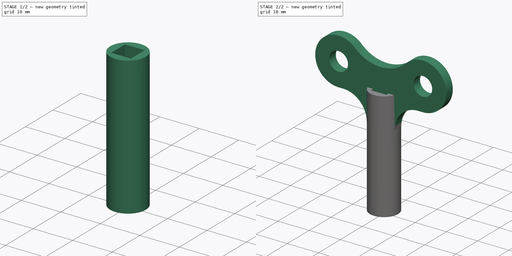
[diagram: build sequence overview — one tinted view per stage of 2, left to right]
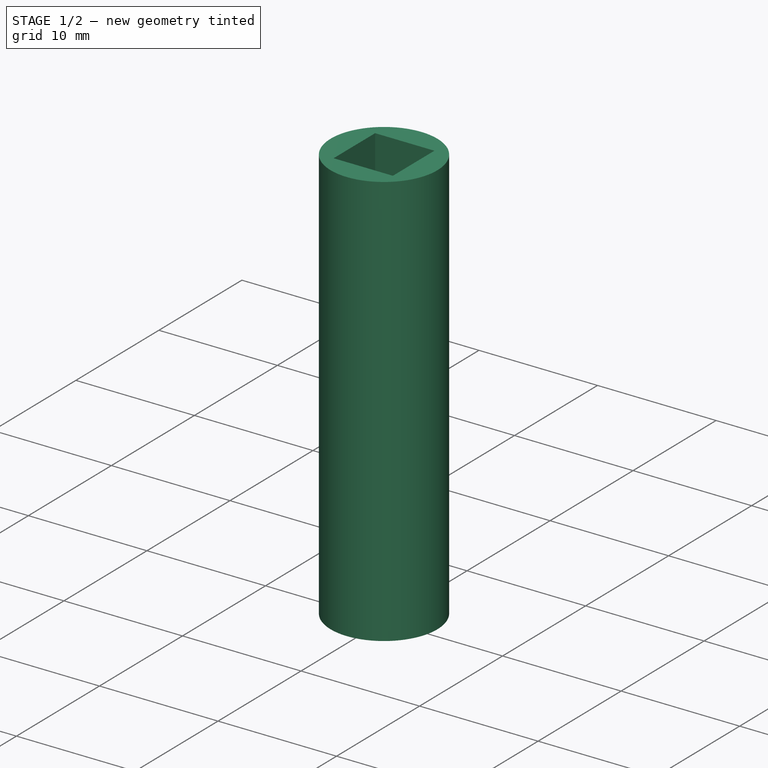
[diagram: stage 1 of 2 — iso view after this stage's code; geometry added in this stage tinted green]
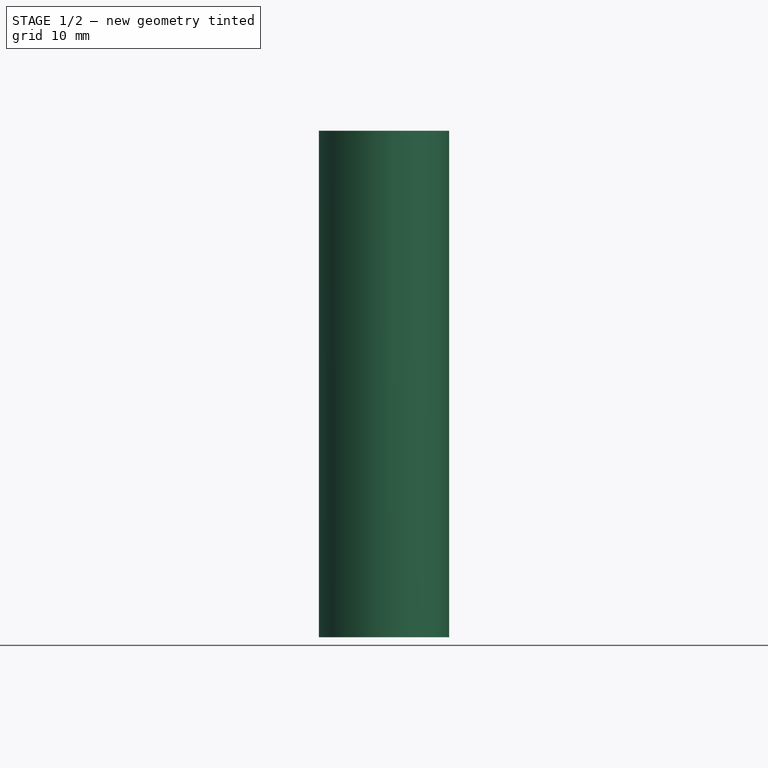
[diagram: stage 1 of 2 — front view after this stage's code; geometry added in this stage tinted green]
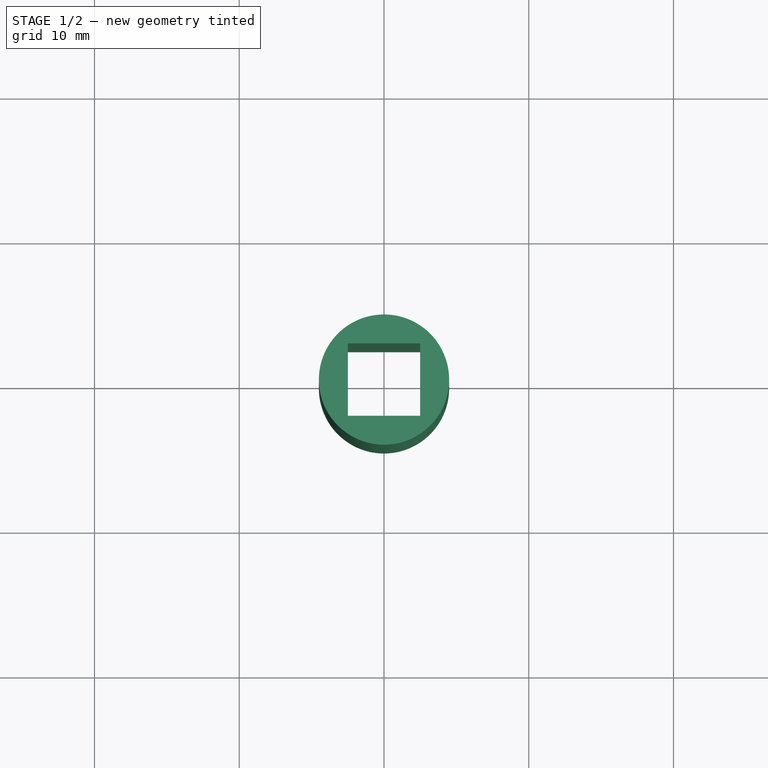
[diagram: stage 1 of 2 — top view after this stage's code; geometry added in this stage tinted green]
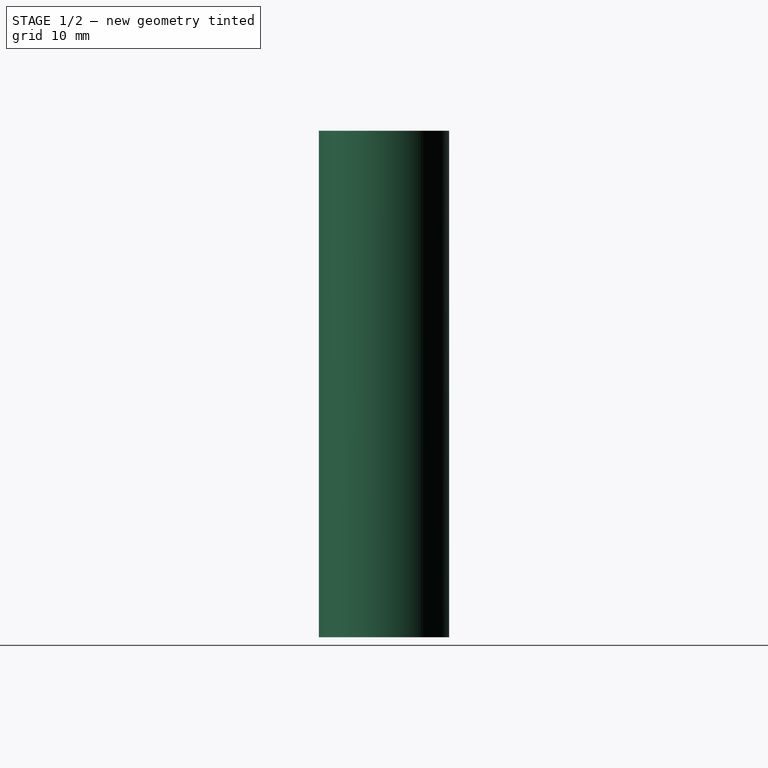
[diagram: stage 1 of 2 — right view after this stage's code; geometry added in this stage tinted green]
FCSTD DOCUMENT  (FreeCAD 1.0R39285 (Git))
Label: WindingKey
License: All rights reserved
LicenseURL: https://en.wikipedia.org/wiki/All_rights_reserved
objects: Sketcher::SketchObject×2, PartDesign::Pad×2, Spreadsheet::Sheet×1, PartDesign::Body×1
note: 11 computed .brp shape members not serialized (recipe doc carries the construction recipe); baked Part::Feature solids carry a one-line shape summary decoded from their .brp

FEATURE [Spreadsheet::Sheet] Spreadsheet
  cells = A1='Square Key; A2='Key Size; B2(SquareKeySize)==5 mm; A3='Outer Diameter; B3(SquareKeyOuterDiameter)==9 mm; A4='Length; B4(SquareKeyLength)==25 mm; A5=' Top Length; B5(SquareKeyTopLength)==10 mm; A6='Grip Hole Dia; B6(SquareKeyGripHoleDia)==6 mm; A7='Grip Hole Width; B7(SquareKeyGripHoleWidth)==27 mm; A8='Grip Hole Height; B8(SquareKeyGripHoleHeight)==15 mm; A9='Grip Center Height; B9(SquareKeyGripCenterHeight)==17 mm; A10='Grip Thickness; B10(SquareKeyGripThickness)==3 mm
FEATURE [Sketcher::SketchObject] Sketch
  ArcFitTolerance = 1e-06
  AttachmentSupport = -> [XY_Plane]
  FullyConstrained = true
  MakeInternals = false
  MapMode = 5
  expr: Constraints[13] = <<Spreadsheet>>.SquareKeySize
  expr: Constraints[1] = <<Spreadsheet>>.SquareKeyOuterDiameter
  sketch-geometry (6):
    g0: Circle CenterX=0 CenterY=0 CenterZ=0 NormalX=0 NormalY=0 NormalZ=1 AngleXU=0 Radius=4.5
    g1: LineSegment StartX=-2.5 StartY=2.5 StartZ=0 EndX=-2.5 EndY=-2.5 EndZ=0
    g2: LineSegment StartX=-2.5 StartY=-2.5 StartZ=0 EndX=2.5 EndY=-2.5 EndZ=0
    g3: LineSegment StartX=2.5 StartY=-2.5 StartZ=0 EndX=2.5 EndY=2.5 EndZ=0
    g4: LineSegment StartX=2.5 StartY=2.5 StartZ=0 EndX=-2.5 EndY=2.5 EndZ=0
    g5: GeomPoint [constr] X=0 Y=0 Z=0
  constraints (14):
    c: Coincident(g0,g-1)
    c: Diameter(g0) = 9
    c: Coincident(g1,g2)
    c: Coincident(g2,g3)
    c: Coincident(g3,g4)
    c: Coincident(g4,g1)
    c: Vertical(g1)
    c: Vertical(g3)
    c: Horizontal(g2)
    c: Horizontal(g4)
    c: Symmetric(g3,g1,g5)
    c: Coincident(g5,g0)
    c: Equal(g3,g4)
    c: DistanceY(g1,g1) = 5
FEATURE [PartDesign::Pad] Pad
  Direction = (0,0,1)
  Length = 10
  Length2 = 25
  Profile = -> Sketch
  ReferenceAxis = -> Sketch [N_Axis]
  Refine = true
  Suppressed = false
  Type = 4
  expr: Length = <<Spreadsheet>>.SquareKeyTopLength
  expr: Length2 = <<Spreadsheet>>.SquareKeyLength
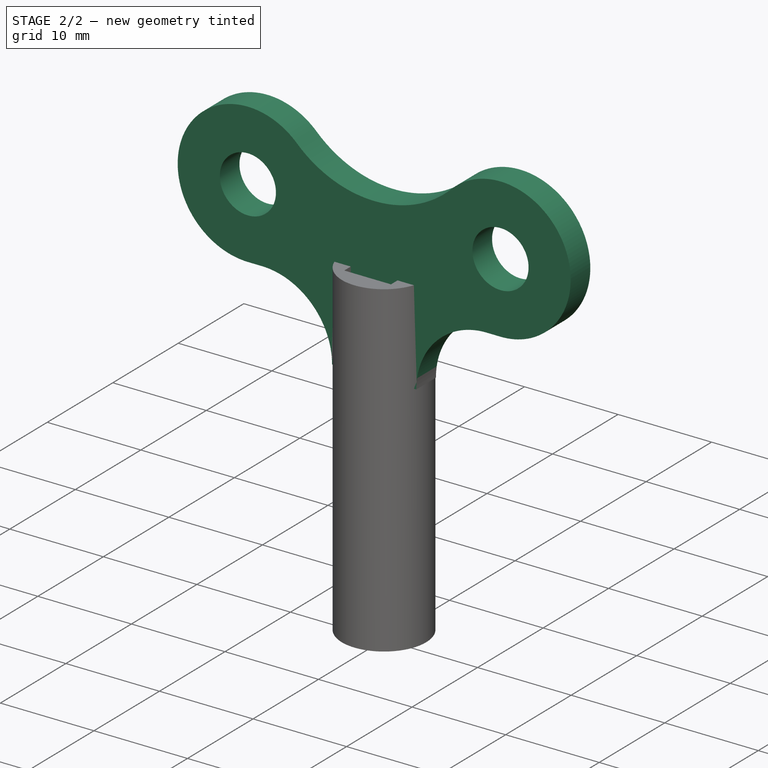
[diagram: stage 2 of 2 — iso view after this stage's code; geometry added in this stage tinted green]
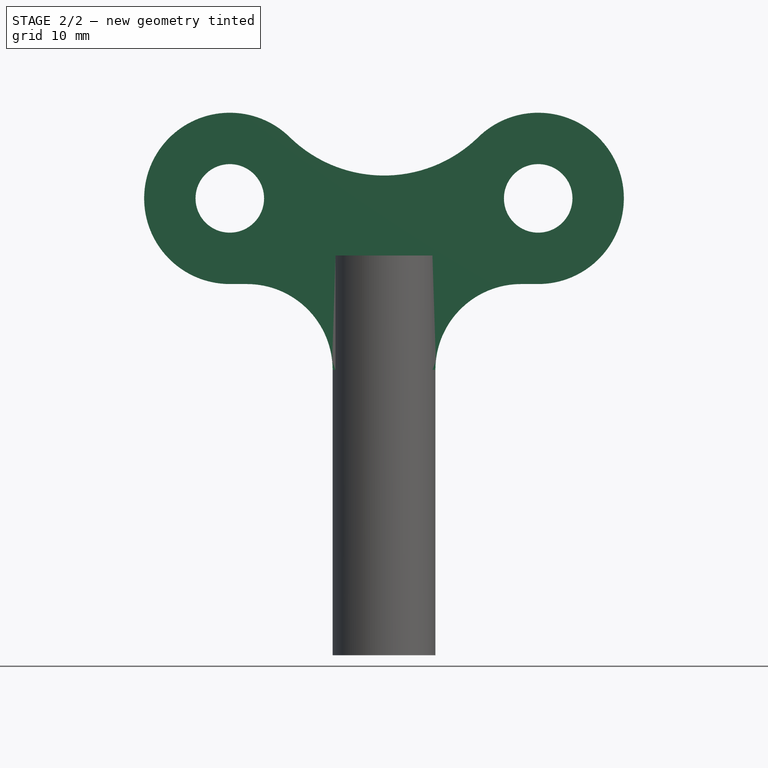
[diagram: stage 2 of 2 — front view after this stage's code; geometry added in this stage tinted green]
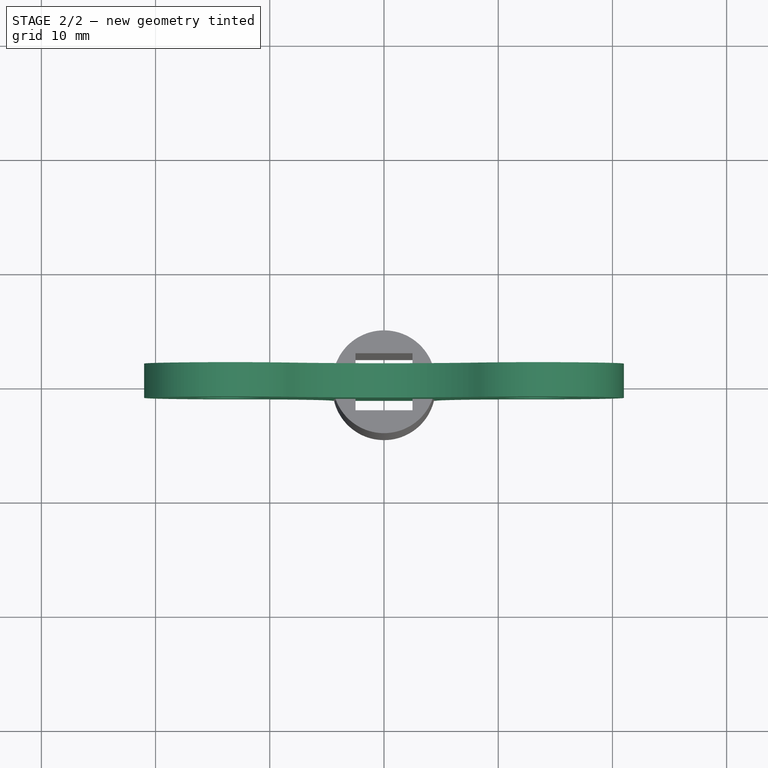
[diagram: stage 2 of 2 — top view after this stage's code; geometry added in this stage tinted green]
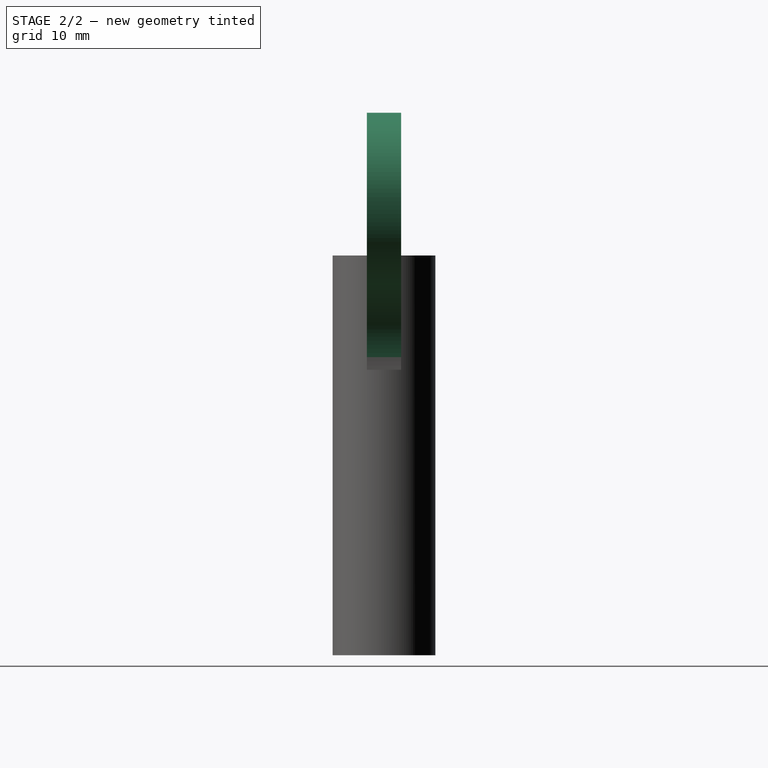
[diagram: stage 2 of 2 — right view after this stage's code; geometry added in this stage tinted green]
FEATURE [Sketcher::SketchObject] Sketch001
  ArcFitTolerance = 1e-06
  AttachmentSupport = -> [XZ_Plane]
  ExternalGeometry = -> [Pad]
  FullyConstrained = true
  MakeInternals = false
  MapMode = 5
  Placement = pos=(0,0,0) rot=(1,0,0;1.5708rad)
  expr: Constraints[21] = <<Spreadsheet>>.SquareKeyGripHoleDia
  expr: Constraints[23] = <<Spreadsheet>>.SquareKeyGripHoleWidth
  expr: Constraints[24] = <<Spreadsheet>>.SquareKeyGripHoleHeight
  expr: Constraints[27] = <<Spreadsheet>>.SquareKeyGripCenterHeight
  sketch-geometry (11):
    g0: ArcOfCircle CenterX=-13.5 CenterY=15 CenterZ=0 NormalX=0 NormalY=0 NormalZ=1 AngleXU=0 Radius=7.5 StartAngle=0.797045 EndAngle=4.71239
    g1: ArcOfCircle CenterX=13.5 CenterY=15 CenterZ=0 NormalX=0 NormalY=0 NormalZ=1 AngleXU=0 Radius=7.5 StartAngle=4.71239 EndAngle=8.62773
    g2: ArcOfCircle CenterX=1e-16 CenterY=28.8182 CenterZ=0 NormalX=0 NormalY=0 NormalZ=1 AngleXU=0 Radius=11.8182 StartAngle=3.93864 EndAngle=5.48614
    g3: LineSegment StartX=-4.5 StartY=0 StartZ=0 EndX=4.5 EndY=0 EndZ=0
    g4: Circle CenterX=13.5 CenterY=15 CenterZ=0 NormalX=0 NormalY=0 NormalZ=1 AngleXU=0 Radius=3
    g5: Circle CenterX=-13.5 CenterY=15 CenterZ=0 NormalX=0 NormalY=0 NormalZ=1 AngleXU=0 Radius=3
    g6: ArcOfCircle CenterX=-12 CenterY=0 CenterZ=0 NormalX=0 NormalY=0 NormalZ=1 AngleXU=0 Radius=7.5 StartAngle=0 EndAngle=1.5708
    g7: ArcOfCircle CenterX=12 CenterY=0 CenterZ=0 NormalX=0 NormalY=0 NormalZ=1 AngleXU=0 Radius=7.5 StartAngle=1.5708 EndAngle=3.14159
    g8: LineSegment StartX=12 StartY=7.5 StartZ=0 EndX=13.5 EndY=7.5 EndZ=0
    g9: LineSegment StartX=-12 StartY=7.5 StartZ=0 EndX=-13.5 EndY=7.5 EndZ=0
    g10: GeomPoint X=0 Y=17 Z=0
  constraints (28):
    c: PointOnObject(g3,g-1)
    c: PointOnObject(g3,g-1)
    c: Tangent(g2,g0) = 1.5708
    c: Tangent(g2,g1) = 1.5708
    c: Coincident(g4,g1)
    c: Coincident(g5,g0)
    c: Coincident(g6,g3)
    c: Coincident(g7,g3)
    c: Tangent(g8,g7) = 1.5708
    c: Tangent(g8,g1) = -1.5708
    c: Tangent(g9,g6) = -1.5708
    c: Tangent(g9,g0) = 1.5708
    c: Equal(g4,g5)
    c: Equal(g0,g1)
    c: Equal(g8,g9)
    c: Equal(g6,g7)
    c: Perpendicular(g7,g3)
    c: Perpendicular(g6,g3)
    c: Vertical(g3,g-3)
    c: Symmetric(g1,g0,g-2)
    c: Equal(g7,g1)
    c: Diameter(g4) = 6
    c: Horizontal(g9)
    c: DistanceX(g0,g1) = 27
    c: DistanceY(g1) = 15
    c: PointOnObject(g10,g2)
    c: PointOnObject(g10,g-2)
    c: DistanceY(g10) = 17
FEATURE [PartDesign::Pad] Pad001
  BaseFeature = -> Pad
  Direction = (0,-1,2e-16)
  Length = 3
  Length2 = 10
  Midplane = true
  Profile = -> Sketch001
  ReferenceAxis = -> Sketch001 [N_Axis]
  Refine = true
  Suppressed = false
  Type = 0
  expr: Length = <<Spreadsheet>>.SquareKeyGripThickness
FEATURE [PartDesign::Body] Body  label="SquareKey"
  AllowCompound = false
  Group = -> [Sketch,Pad,Sketch001,Pad001]
  Origin = -> Origin
  Tip = -> Pad001
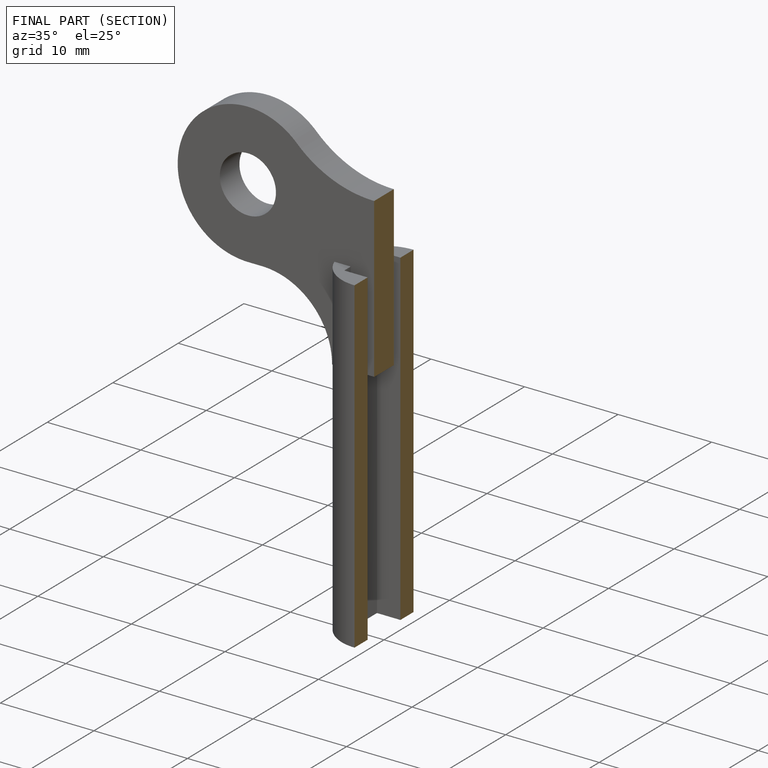
[diagram: finished part — half-section view (interior)]
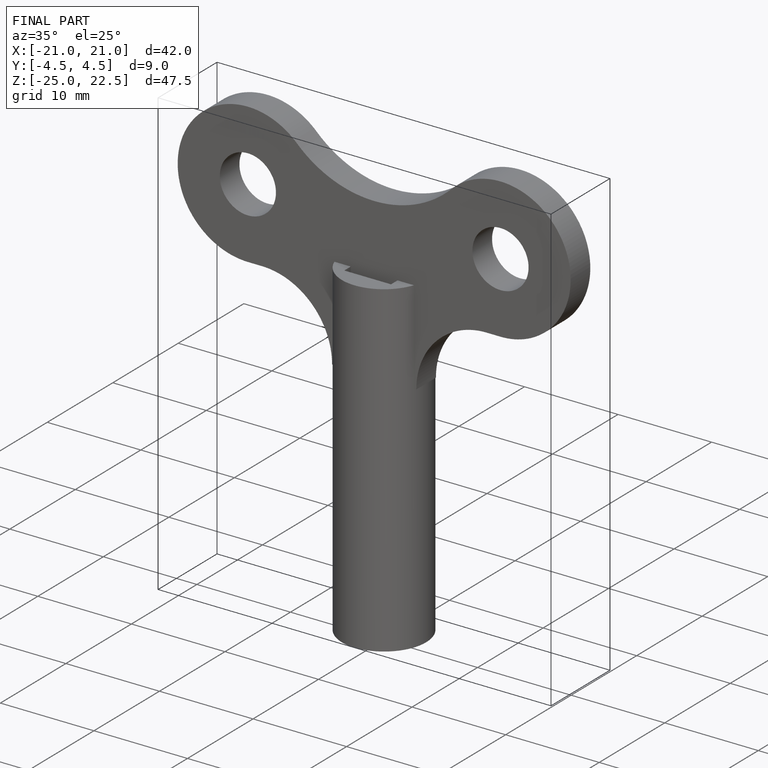
[diagram: finished part — iso view with bounding-box wireframe]
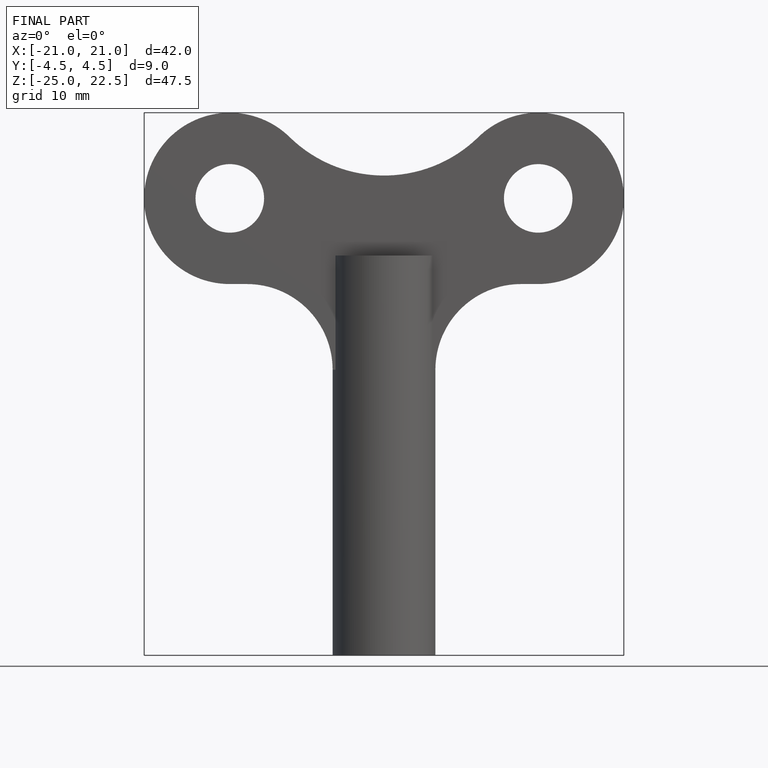
[diagram: finished part — front view with bounding-box wireframe]
